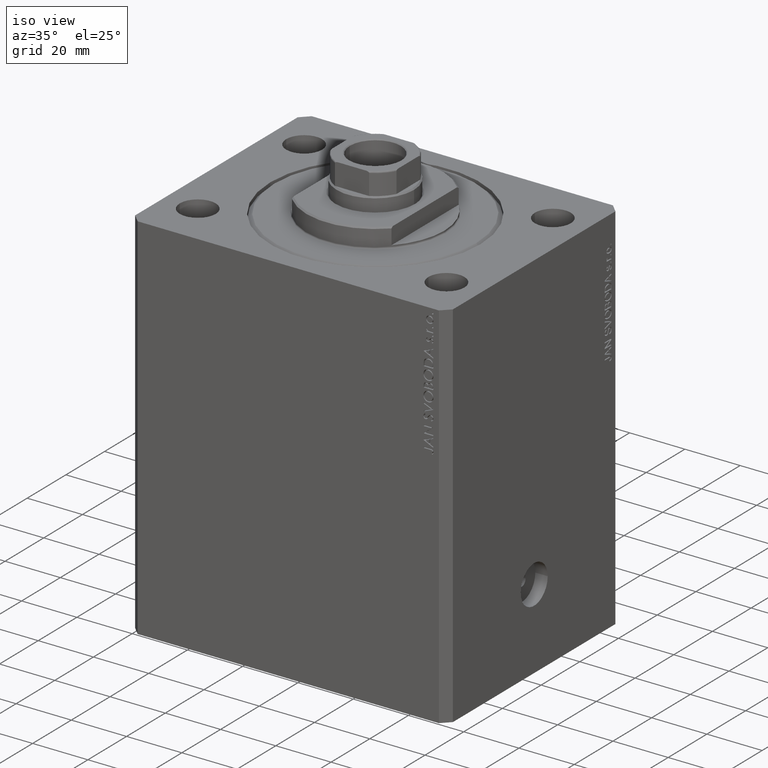
[diagram: clean part render]
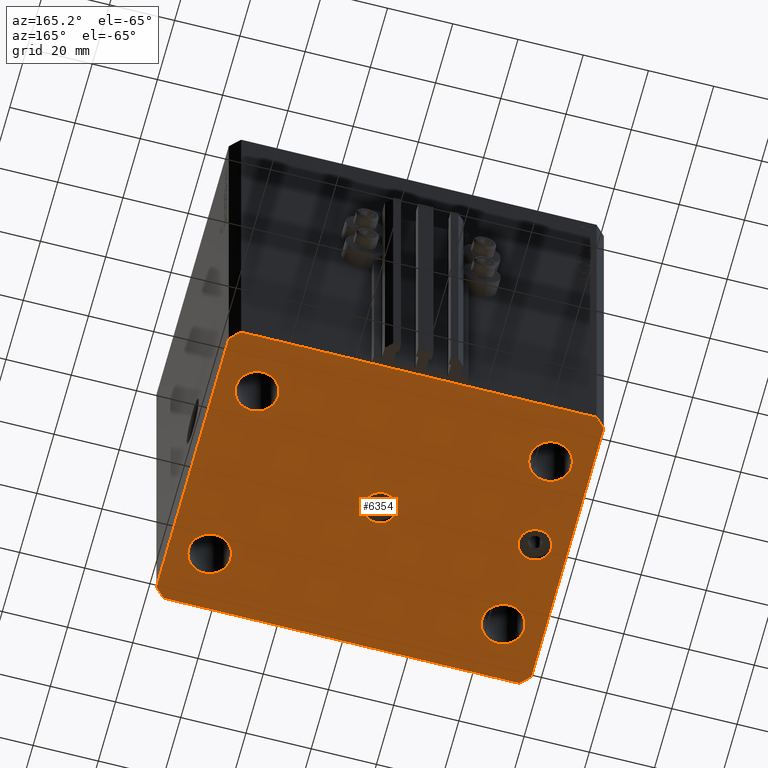
[diagram: tour spotlight — one face highlighted and labeled with its STEP entity id]
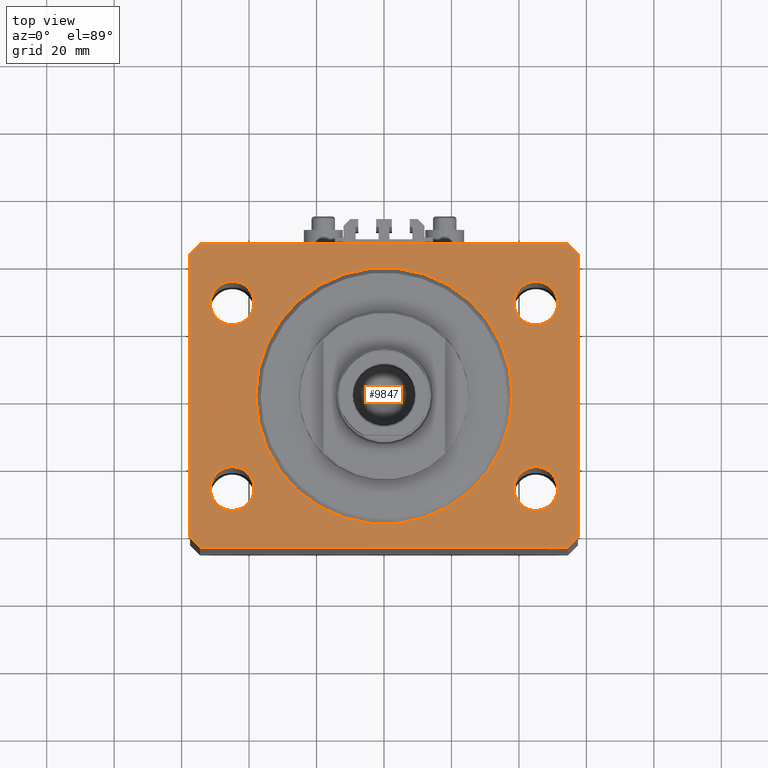
[diagram: tour spotlight — one face highlighted and labeled with its STEP entity id]
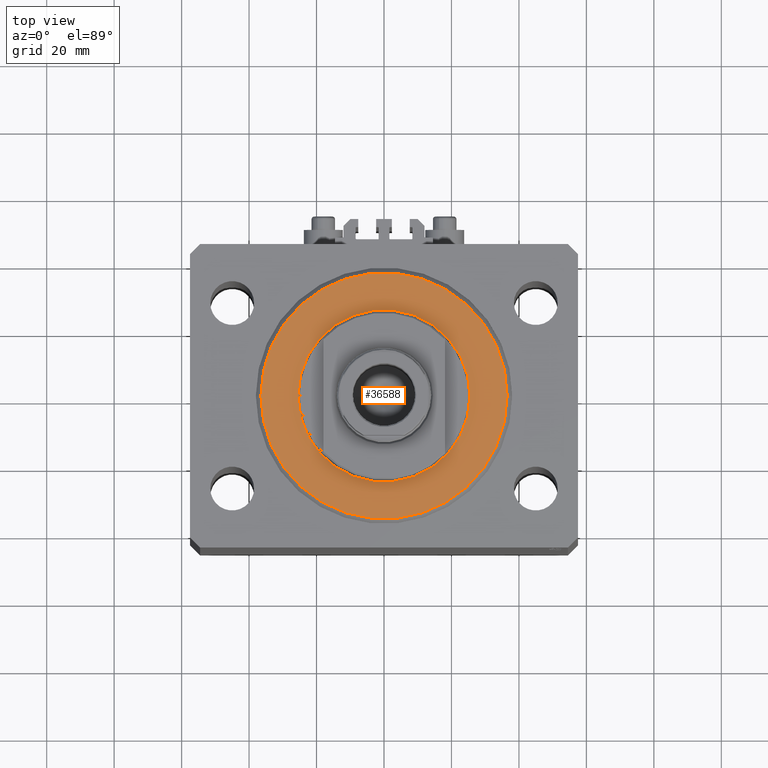
[diagram: tour spotlight — one face highlighted and labeled with its STEP entity id]
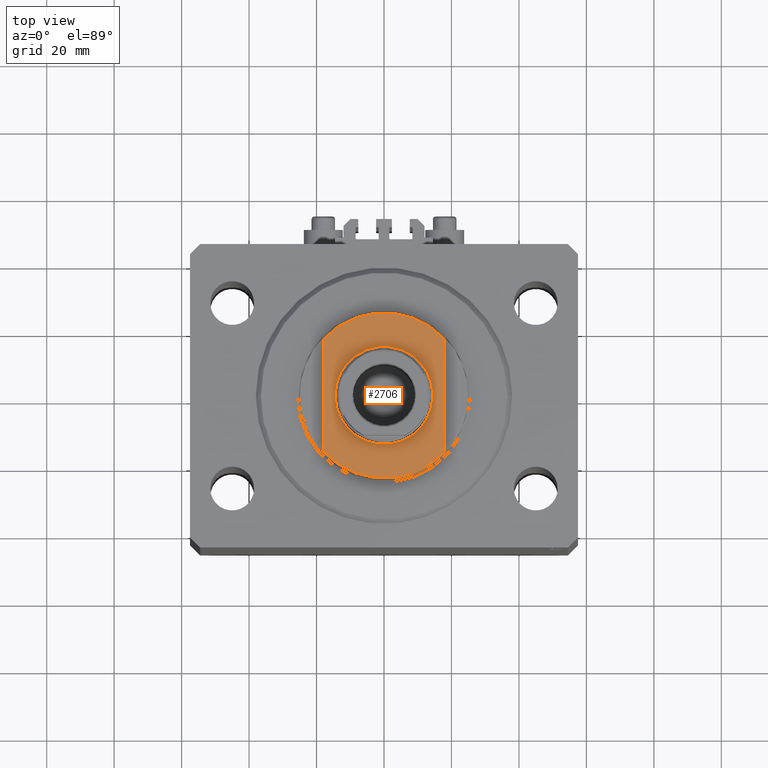
[diagram: tour spotlight — one face highlighted and labeled with its STEP entity id]
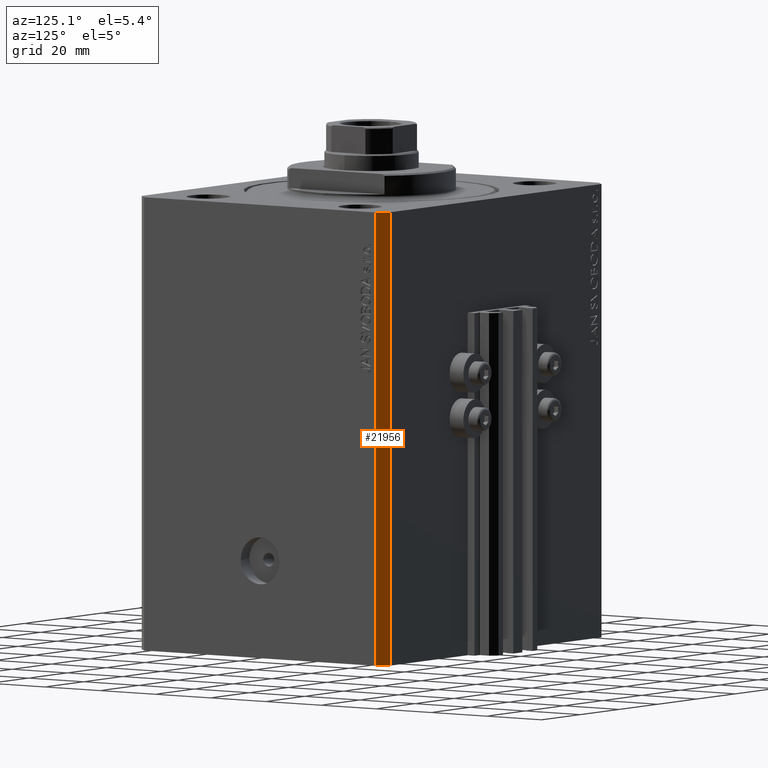
[diagram: tour spotlight — one face highlighted and labeled with its STEP entity id]
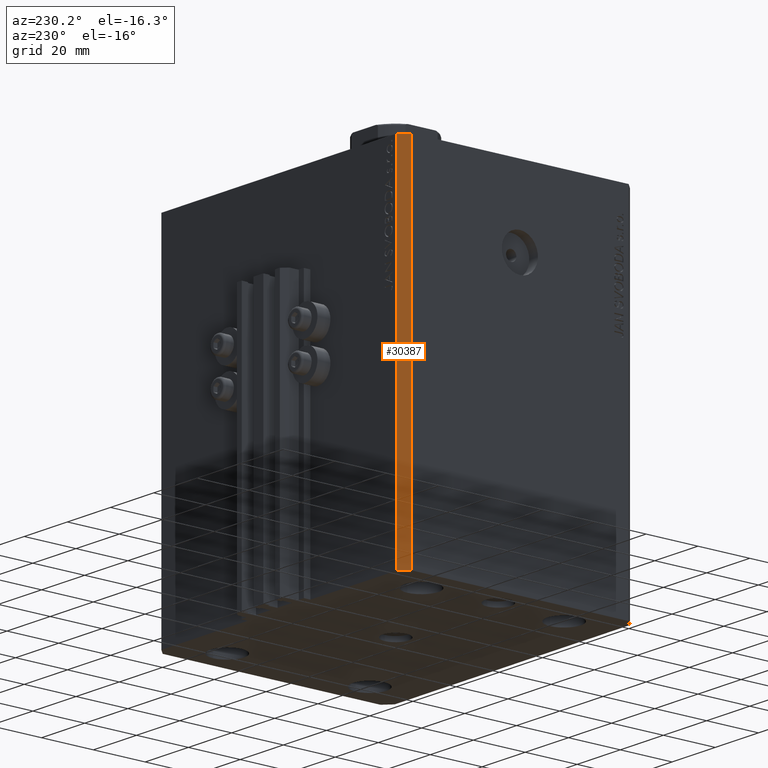
[diagram: tour spotlight — one face highlighted and labeled with its STEP entity id]
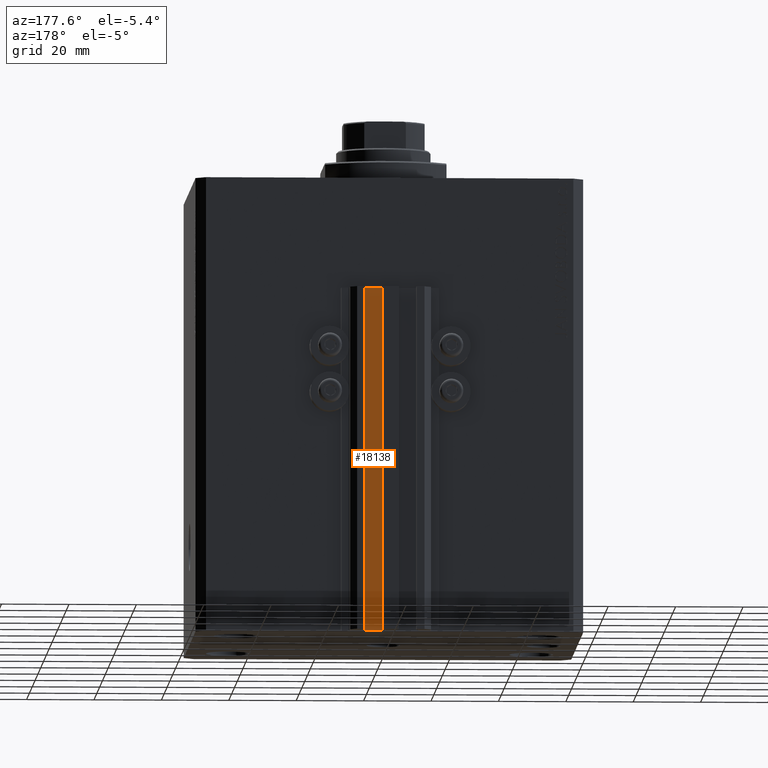
[diagram: tour spotlight — one face highlighted and labeled with its STEP entity id]
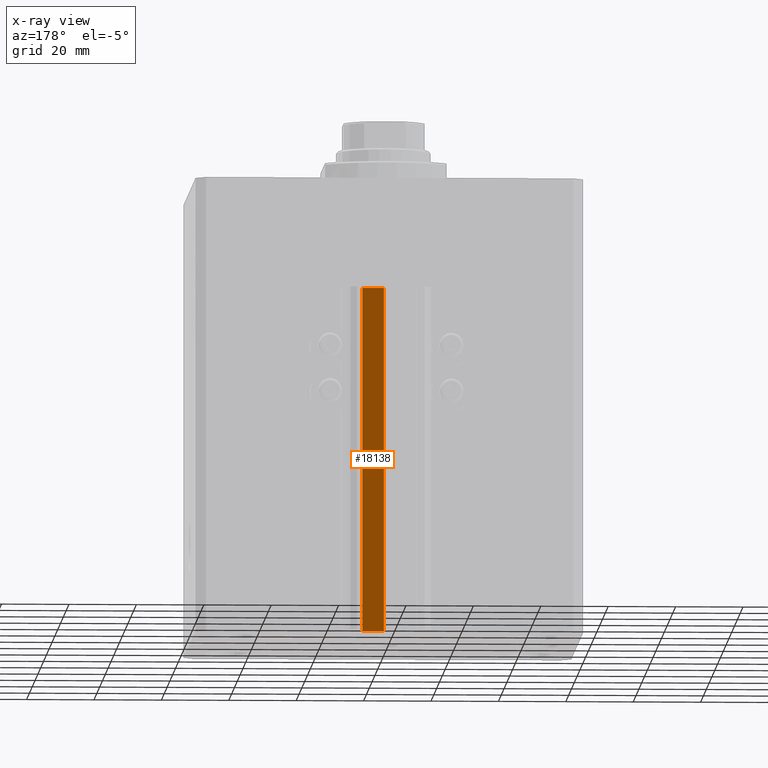
[diagram: x-ray of the same camera — body ghosted, this tour face saturated]
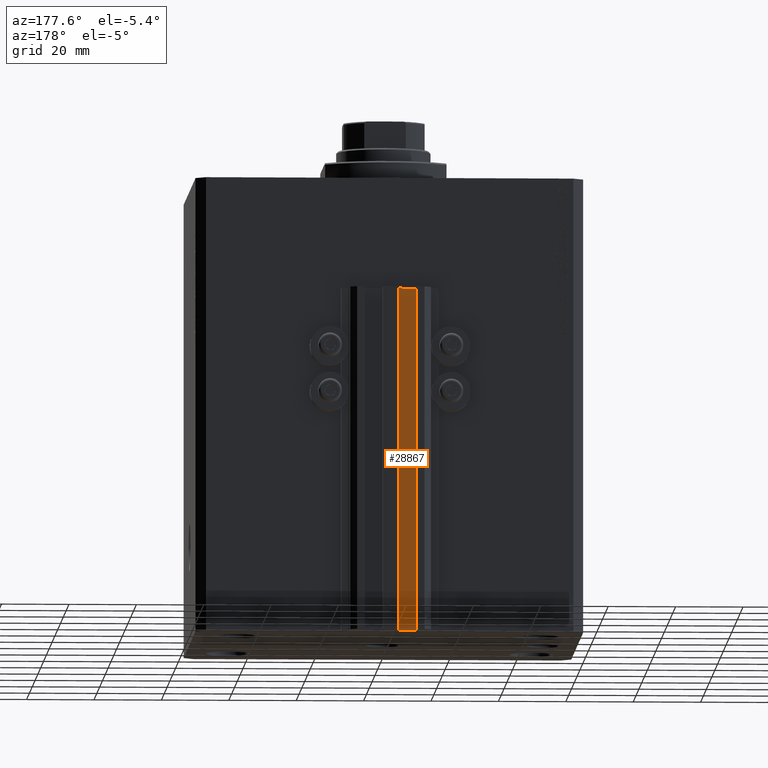
[diagram: tour spotlight — one face highlighted and labeled with its STEP entity id]
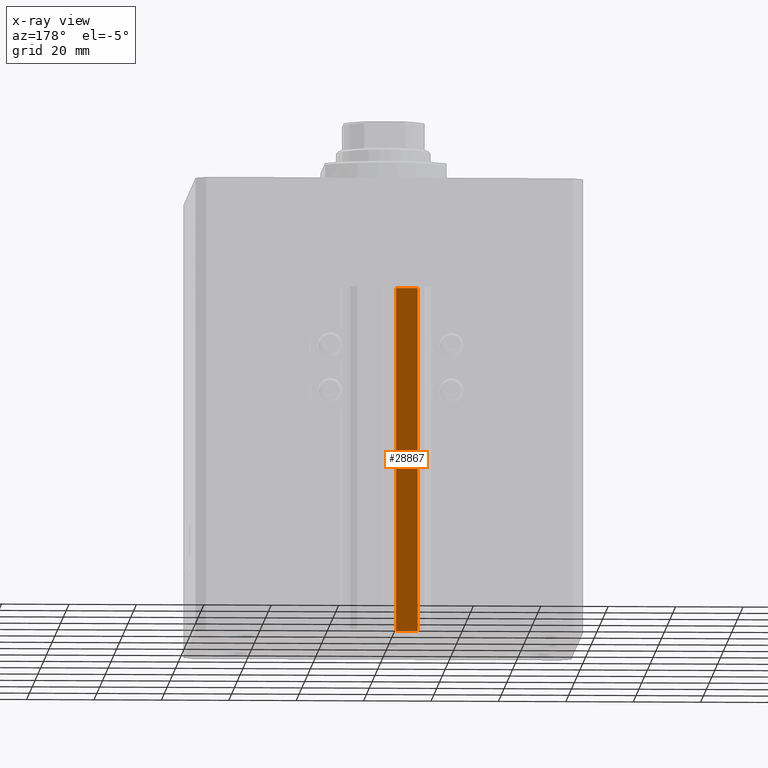
[diagram: x-ray of the same camera — body ghosted, this tour face saturated]
A machine part: a face-by-face anatomy tour. The part has 1038 B-rep faces; the first image is the clean iso view, then the 8 largest visible faces are spotlighted one at a time (largest first), each with its STEP entity span.

Face 1 — auxiliary view, entity #6354. In plain terms, the highlighted planar face has unit normal (0, 0, 1).
Definition (entity closure, byte-faithful):
#75 = CARTESIAN_POINT ( 'NONE',  ( 45.00000000000000000, 27.49999999999999289, -135.0000000000000000 ) ) ;
#225 = DIRECTION ( 'NONE',  ( 1.000000000000000000, 0.000000000000000000, 0.000000000000000000 ) ) ;
#308 = CIRCLE ( 'NONE', #43871, 5.000000000000000000 ) ;
#314 = CARTESIAN_POINT ( 'NONE',  ( 54.50000000000000711, -44.99999999999998579, -135.0000000000000000 ) ) ;
#408 = CARTESIAN_POINT ( 'NONE',  ( -44.99999999999998579, -27.50000000000000355, -135.0000000000000000 ) ) ;
#578 = EDGE_LOOP ( 'NONE', ( #1347, #4498 ) ) ;
#1347 = ORIENTED_EDGE ( 'NONE', *, *, #9539, .F. ) ;
#1409 = EDGE_CURVE ( 'NONE', #12749, #21892, #29365, .T. ) ;
#1579 = DIRECTION ( 'NONE',  ( -0.7071067811865369146, 0.7071067811865581199, 0.000000000000000000 ) ) ;
#1838 = CIRCLE ( 'NONE', #24786, 4.999999999999997335 ) ;
#2052 = FACE_BOUND ( 'NONE', #18580, .T. ) ;
#2468 = CIRCLE ( 'NONE', #41465, 6.499999999999999112 ) ;
#3034 = DIRECTION ( 'NONE',  ( 6.443258625056715108E-15, 1.000000000000000000, 0.000000000000000000 ) ) ;
#3431 = DIRECTION ( 'NONE',  ( 0.7071067811865483499, 0.7071067811865466846, 0.000000000000000000 ) ) ;
#3629 = EDGE_CURVE ( 'NONE', #33131, #8147, #47109, .T. ) ;
#3772 = DIRECTION ( 'NONE',  ( -2.478176394252581141E-16, -1.000000000000000000, 0.000000000000000000 ) ) ;
#3837 = DIRECTION ( 'NONE',  ( -1.000000000000000000, 0.000000000000000000, 0.000000000000000000 ) ) ;
#3884 = DIRECTION ( 'NONE',  ( -0.000000000000000000, -0.000000000000000000, -1.000000000000000000 ) ) ;
#4375 = DIRECTION ( 'NONE',  ( 1.000000000000000000, 0.000000000000000000, 0.000000000000000000 ) ) ;
#4498 = ORIENTED_EDGE ( 'NONE', *, *, #13538, .F. ) ;
#4531 = VECTOR ( 'NONE', #3034, 1000.000000000000000 ) ;
#4715 = AXIS2_PLACEMENT_3D ( 'NONE', #22054, #36633, #3837 ) ;
#5210 = ORIENTED_EDGE ( 'NONE', *, *, #19388, .F. ) ;
#5616 = DIRECTION ( 'NONE',  ( -1.000000000000000000, -2.546383084002638829E-16, 0.000000000000000000 ) ) ;
#6260 = VECTOR ( 'NONE', #37482, 1000.000000000000114 ) ;
#6354 = ADVANCED_FACE ( 'NONE', ( #12372, #2052, #9504, #23387, #41799, #45615, #12140 ), #27415, .F. ) ;
#6941 = EDGE_CURVE ( 'NONE', #42255, #17235, #20028, .T. ) ;
#6984 = VERTEX_POINT ( 'NONE', #8441 ) ;
#7041 = EDGE_CURVE ( 'NONE', #6984, #13813, #13122, .T. ) ;
#7129 = AXIS2_PLACEMENT_3D ( 'NONE', #33572, #7507, #4375 ) ;
#7359 = CARTESIAN_POINT ( 'NONE',  ( 57.50000000000000711, -41.99999999999998579, -135.0000000000000000 ) ) ;
#7507 = DIRECTION ( 'NONE',  ( -0.000000000000000000, -0.000000000000000000, -1.000000000000000000 ) ) ;
#7974 = EDGE_CURVE ( 'NONE', #38996, #23351, #35313, .T. ) ;
#7979 = DIRECTION ( 'NONE',  ( 1.000000000000000000, 0.000000000000000000, 0.000000000000000000 ) ) ;
#8078 = EDGE_LOOP ( 'NONE', ( #36218, #31328 ) ) ;
#8147 = VERTEX_POINT ( 'NONE', #24177 ) ;
#8285 = VERTEX_POINT ( 'NONE', #18867 ) ;
#8364 = DIRECTION ( 'NONE',  ( 0.000000000000000000, 0.000000000000000000, -1.000000000000000000 ) ) ;
#8441 = CARTESIAN_POINT ( 'NONE',  ( -38.50000000000000000, 27.49999999999999645, -135.0000000000000000 ) ) ;
#8663 = ORIENTED_EDGE ( 'NONE', *, *, #27718, .F. ) ;
#8795 = DIRECTION ( 'NONE',  ( 1.000000000000000000, 0.000000000000000000, 0.000000000000000000 ) ) ;
#9033 = DIRECTION ( 'NONE',  ( 1.000000000000000000, 0.000000000000000000, -0.000000000000000000 ) ) ;
#9504 = FACE_BOUND ( 'NONE', #578, .T. ) ;
#9539 = EDGE_CURVE ( 'NONE', #28837, #10145, #22284, .T. ) ;
#10099 = DIRECTION ( 'NONE',  ( 1.000000000000000000, 0.000000000000000000, 0.000000000000000000 ) ) ;
#10145 = VERTEX_POINT ( 'NONE', #15084 ) ;
#10168 = LINE ( 'NONE', #16871, #11570 ) ;
#10391 = ORIENTED_EDGE ( 'NONE', *, *, #38810, .F. ) ;
#10476 = EDGE_CURVE ( 'NONE', #8147, #36694, #44654, .T. ) ;
#11570 = VECTOR ( 'NONE', #5616, 1000.000000000000000 ) ;
#11888 = CARTESIAN_POINT ( 'NONE',  ( -57.50000000000000711, -42.00000000000000711, -135.0000000000000000 ) ) ;
#12140 = FACE_OUTER_BOUND ( 'NONE', #17545, .T. ) ;
#12372 = FACE_BOUND ( 'NONE', #39048, .T. ) ;
#12749 = VERTEX_POINT ( 'NONE', #18169 ) ;
#12814 = DIRECTION ( 'NONE',  ( 1.000000000000000000, 1.273191542001326317E-16, 0.000000000000000000 ) ) ;
#13122 = CIRCLE ( 'NONE', #18505, 6.499999999999999112 ) ;
#13444 = DIRECTION ( 'NONE',  ( -0.000000000000000000, -0.000000000000000000, -1.000000000000000000 ) ) ;
#13538 = EDGE_CURVE ( 'NONE', #10145, #28837, #2468, .T. ) ;
#13813 = VERTEX_POINT ( 'NONE', #15010 ) ;
#14016 = ORIENTED_EDGE ( 'NONE', *, *, #31334, .F. ) ;
#14102 = CARTESIAN_POINT ( 'NONE',  ( -57.49999999999998579, 42.00000000000000711, -135.0000000000000000 ) ) ;
#14368 = CARTESIAN_POINT ( 'NONE',  ( 44.99999999999998579, -27.50000000000000355, -135.0000000000000000 ) ) ;
#14549 = CARTESIAN_POINT ( 'NONE',  ( 38.50000000000000000, 27.49999999999999289, -135.0000000000000000 ) ) ;
#14708 = DIRECTION ( 'NONE',  ( -0.000000000000000000, -0.000000000000000000, -1.000000000000000000 ) ) ;
#14815 = DIRECTION ( 'NONE',  ( 1.000000000000000000, 0.000000000000000000, 0.000000000000000000 ) ) ;
#15010 = CARTESIAN_POINT ( 'NONE',  ( -51.50000000000000000, 27.49999999999999645, -135.0000000000000000 ) ) ;
#15050 = DIRECTION ( 'NONE',  ( -0.000000000000000000, -0.000000000000000000, -1.000000000000000000 ) ) ;
#15084 = CARTESIAN_POINT ( 'NONE',  ( -51.49999999999998579, -27.50000000000000355, -135.0000000000000000 ) ) ;
#15731 = ORIENTED_EDGE ( 'NONE', *, *, #3629, .F. ) ;
#16214 = CARTESIAN_POINT ( 'NONE',  ( 57.50000000000055422, 41.99999999999997868, -135.0000000000000000 ) ) ;
#16871 = CARTESIAN_POINT ( 'NONE',  ( 54.50000000000059686, 45.00000000000002842, -135.0000000000000000 ) ) ;
#17235 = VERTEX_POINT ( 'NONE', #26773 ) ;
#17444 = LINE ( 'NONE', #39211, #42852 ) ;
#17545 = EDGE_LOOP ( 'NONE', ( #14016, #24027, #27355, #8663, #45759, #19194, #15731, #40995 ) ) ;
#18041 = CARTESIAN_POINT ( 'NONE',  ( 54.50000000000059686, 45.00000000000002842, -135.0000000000000000 ) ) ;
#18169 = CARTESIAN_POINT ( 'NONE',  ( 57.50000000000000711, -41.99999999999998579, -135.0000000000000000 ) ) ;
#18505 = AXIS2_PLACEMENT_3D ( 'NONE', #20862, #13444, #10099 ) ;
#18580 = EDGE_LOOP ( 'NONE', ( #46594, #44364 ) ) ;
#18787 = LINE ( 'NONE', #314, #22529 ) ;
#18867 = CARTESIAN_POINT ( 'NONE',  ( -52.50000000000000000, 0.000000000000000000, -135.0000000000000000 ) ) ;
#18900 = CARTESIAN_POINT ( 'NONE',  ( -44.99999999999998579, -27.50000000000000355, -135.0000000000000000 ) ) ;
#19194 = ORIENTED_EDGE ( 'NONE', *, *, #10476, .F. ) ;
#19269 = VECTOR ( 'NONE', #12814, 1000.000000000000000 ) ;
#19388 = EDGE_CURVE ( 'NONE', #35589, #43186, #38599, .T. ) ;
#19997 = AXIS2_PLACEMENT_3D ( 'NONE', #35075, #42022, #9033 ) ;
#20028 = CIRCLE ( 'NONE', #26865, 6.499999999999999112 ) ;
#20718 = AXIS2_PLACEMENT_3D ( 'NONE', #40396, #15050, #14815 ) ;
#20862 = CARTESIAN_POINT ( 'NONE',  ( -45.00000000000000000, 27.49999999999999645, -135.0000000000000000 ) ) ;
#21117 = CARTESIAN_POINT ( 'NONE',  ( -54.49999999999999289, 45.00000000000000000, -135.0000000000000000 ) ) ;
#21516 = DIRECTION ( 'NONE',  ( -0.000000000000000000, -0.000000000000000000, -1.000000000000000000 ) ) ;
#21596 = CARTESIAN_POINT ( 'NONE',  ( -42.50000000000000000, 6.123233995736762338E-16, -135.0000000000000000 ) ) ;
#21892 = VERTEX_POINT ( 'NONE', #41104 ) ;
#22054 = CARTESIAN_POINT ( 'NONE',  ( -47.50000000000000000, 0.000000000000000000, -135.0000000000000000 ) ) ;
#22284 = CIRCLE ( 'NONE', #33705, 6.499999999999999112 ) ;
#22301 = CARTESIAN_POINT ( 'NONE',  ( 38.49999999999998579, -27.50000000000000355, -135.0000000000000000 ) ) ;
#22446 = DIRECTION ( 'NONE',  ( -0.000000000000000000, -0.000000000000000000, -1.000000000000000000 ) ) ;
#22529 = VECTOR ( 'NONE', #3431, 1000.000000000000000 ) ;
#22591 = AXIS2_PLACEMENT_3D ( 'NONE', #14368, #39959, #225 ) ;
#22698 = LINE ( 'NONE', #16214, #40291 ) ;
#23351 = VERTEX_POINT ( 'NONE', #26699 ) ;
#23387 = FACE_BOUND ( 'NONE', #24267, .T. ) ;
#23588 = CARTESIAN_POINT ( 'NONE',  ( 54.50000000000000711, -44.99999999999998579, -135.0000000000000000 ) ) ;
#23999 = EDGE_LOOP ( 'NONE', ( #42217, #5210 ) ) ;
#24003 = DIRECTION ( 'NONE',  ( 0.000000000000000000, 0.000000000000000000, -1.000000000000000000 ) ) ;
#24027 = ORIENTED_EDGE ( 'NONE', *, *, #25521, .F. ) ;
#24140 = DIRECTION ( 'NONE',  ( -0.7071067811865483499, -0.7071067811865466846, 0.000000000000000000 ) ) ;
#24177 = CARTESIAN_POINT ( 'NONE',  ( -57.50000000000000711, -42.00000000000000711, -135.0000000000000000 ) ) ;
#24227 = EDGE_CURVE ( 'NONE', #17235, #42255, #43212, .T. ) ;
#24267 = EDGE_LOOP ( 'NONE', ( #40946, #30355 ) ) ;
#24612 = CARTESIAN_POINT ( 'NONE',  ( 51.50000000000000000, 27.49999999999999289, -135.0000000000000000 ) ) ;
#24786 = AXIS2_PLACEMENT_3D ( 'NONE', #35256, #28553, #43615 ) ;
#25521 = EDGE_CURVE ( 'NONE', #21892, #36167, #22698, .T. ) ;
#26699 = CARTESIAN_POINT ( 'NONE',  ( 5.000000000000000000, 6.123233995736765296E-16, -135.0000000000000000 ) ) ;
#26773 = CARTESIAN_POINT ( 'NONE',  ( 51.49999999999998579, -27.50000000000000355, -135.0000000000000000 ) ) ;
#26865 = AXIS2_PLACEMENT_3D ( 'NONE', #40753, #3884, #7979 ) ;
#27139 = VERTEX_POINT ( 'NONE', #21117 ) ;
#27355 = ORIENTED_EDGE ( 'NONE', *, *, #1409, .F. ) ;
#27415 = PLANE ( 'NONE',  #19997 ) ;
#27718 = EDGE_CURVE ( 'NONE', #37144, #12749, #18787, .T. ) ;
#28286 = DIRECTION ( 'NONE',  ( -1.000000000000000000, 0.000000000000000000, 0.000000000000000000 ) ) ;
#28553 = DIRECTION ( 'NONE',  ( 0.000000000000000000, 0.000000000000000000, -1.000000000000000000 ) ) ;
#28837 = VERTEX_POINT ( 'NONE', #33263 ) ;
#29365 = LINE ( 'NONE', #7359, #4531 ) ;
#29890 = EDGE_CURVE ( 'NONE', #27139, #33131, #17444, .T. ) ;
#29962 = EDGE_CURVE ( 'NONE', #13813, #6984, #45125, .T. ) ;
#30355 = ORIENTED_EDGE ( 'NONE', *, *, #6941, .F. ) ;
#30711 = CIRCLE ( 'NONE', #4715, 4.999999999999997335 ) ;
#30985 = LINE ( 'NONE', #45578, #19269 ) ;
#31328 = ORIENTED_EDGE ( 'NONE', *, *, #29962, .F. ) ;
#31334 = EDGE_CURVE ( 'NONE', #36167, #27139, #10168, .T. ) ;
#31648 = CARTESIAN_POINT ( 'NONE',  ( 0.000000000000000000, 0.000000000000000000, -135.0000000000000000 ) ) ;
#32146 = VECTOR ( 'NONE', #3772, 1000.000000000000000 ) ;
#32262 = EDGE_CURVE ( 'NONE', #36694, #37144, #30985, .T. ) ;
#32752 = DIRECTION ( 'NONE',  ( 1.000000000000000000, 0.000000000000000000, 0.000000000000000000 ) ) ;
#32858 = EDGE_CURVE ( 'NONE', #37435, #8285, #30711, .T. ) ;
#33131 = VERTEX_POINT ( 'NONE', #40647 ) ;
#33263 = CARTESIAN_POINT ( 'NONE',  ( -38.49999999999998579, -27.50000000000000355, -135.0000000000000000 ) ) ;
#33361 = DIRECTION ( 'NONE',  ( 1.000000000000000000, 0.000000000000000000, 0.000000000000000000 ) ) ;
#33572 = CARTESIAN_POINT ( 'NONE',  ( 45.00000000000000000, 27.49999999999999289, -135.0000000000000000 ) ) ;
#33705 = AXIS2_PLACEMENT_3D ( 'NONE', #408, #22446, #8795 ) ;
#34079 = CARTESIAN_POINT ( 'NONE',  ( -5.000000000000000000, 0.000000000000000000, -135.0000000000000000 ) ) ;
#34185 = CARTESIAN_POINT ( 'NONE',  ( 0.000000000000000000, 0.000000000000000000, -135.0000000000000000 ) ) ;
#34414 = DIRECTION ( 'NONE',  ( -1.000000000000000000, 0.000000000000000000, 0.000000000000000000 ) ) ;
#35075 = CARTESIAN_POINT ( 'NONE',  ( 0.000000000000000000, 0.000000000000000000, -135.0000000000000000 ) ) ;
#35256 = CARTESIAN_POINT ( 'NONE',  ( -47.50000000000000000, 0.000000000000000000, -135.0000000000000000 ) ) ;
#35313 = CIRCLE ( 'NONE', #36868, 5.000000000000000000 ) ;
#35589 = VERTEX_POINT ( 'NONE', #14549 ) ;
#36167 = VERTEX_POINT ( 'NONE', #18041 ) ;
#36218 = ORIENTED_EDGE ( 'NONE', *, *, #7041, .F. ) ;
#36633 = DIRECTION ( 'NONE',  ( 0.000000000000000000, 0.000000000000000000, -1.000000000000000000 ) ) ;
#36694 = VERTEX_POINT ( 'NONE', #47275 ) ;
#36868 = AXIS2_PLACEMENT_3D ( 'NONE', #31648, #24003, #28286 ) ;
#37144 = VERTEX_POINT ( 'NONE', #23588 ) ;
#37435 = VERTEX_POINT ( 'NONE', #21596 ) ;
#37482 = DIRECTION ( 'NONE',  ( 0.7071067811865491270, -0.7071067811865459074, 0.000000000000000000 ) ) ;
#38385 = ORIENTED_EDGE ( 'NONE', *, *, #7974, .F. ) ;
#38599 = CIRCLE ( 'NONE', #47002, 6.499999999999999112 ) ;
#38810 = EDGE_CURVE ( 'NONE', #23351, #38996, #308, .T. ) ;
#38996 = VERTEX_POINT ( 'NONE', #34079 ) ;
#39048 = EDGE_LOOP ( 'NONE', ( #38385, #10391 ) ) ;
#39211 = CARTESIAN_POINT ( 'NONE',  ( -54.49999999999999289, 45.00000000000000000, -135.0000000000000000 ) ) ;
#39959 = DIRECTION ( 'NONE',  ( -0.000000000000000000, -0.000000000000000000, -1.000000000000000000 ) ) ;
#40161 = EDGE_CURVE ( 'NONE', #43186, #35589, #42262, .T. ) ;
#40291 = VECTOR ( 'NONE', #1579, 1000.000000000000000 ) ;
#40396 = CARTESIAN_POINT ( 'NONE',  ( -45.00000000000000000, 27.49999999999999645, -135.0000000000000000 ) ) ;
#40647 = CARTESIAN_POINT ( 'NONE',  ( -57.49999999999998579, 42.00000000000000711, -135.0000000000000000 ) ) ;
#40753 = CARTESIAN_POINT ( 'NONE',  ( 44.99999999999998579, -27.50000000000000355, -135.0000000000000000 ) ) ;
#40946 = ORIENTED_EDGE ( 'NONE', *, *, #24227, .F. ) ;
#40995 = ORIENTED_EDGE ( 'NONE', *, *, #29890, .F. ) ;
#41104 = CARTESIAN_POINT ( 'NONE',  ( 57.50000000000055422, 41.99999999999997868, -135.0000000000000000 ) ) ;
#41465 = AXIS2_PLACEMENT_3D ( 'NONE', #18900, #21516, #32752 ) ;
#41799 = FACE_BOUND ( 'NONE', #23999, .T. ) ;
#42022 = DIRECTION ( 'NONE',  ( 0.000000000000000000, 0.000000000000000000, 1.000000000000000000 ) ) ;
#42217 = ORIENTED_EDGE ( 'NONE', *, *, #40161, .F. ) ;
#42255 = VERTEX_POINT ( 'NONE', #22301 ) ;
#42262 = CIRCLE ( 'NONE', #7129, 6.499999999999999112 ) ;
#42852 = VECTOR ( 'NONE', #24140, 1000.000000000000000 ) ;
#43186 = VERTEX_POINT ( 'NONE', #24612 ) ;
#43212 = CIRCLE ( 'NONE', #22591, 6.499999999999999112 ) ;
#43499 = EDGE_CURVE ( 'NONE', #8285, #37435, #1838, .T. ) ;
#43615 = DIRECTION ( 'NONE',  ( -1.000000000000000000, 0.000000000000000000, 0.000000000000000000 ) ) ;
#43871 = AXIS2_PLACEMENT_3D ( 'NONE', #34185, #8364, #34414 ) ;
#44364 = ORIENTED_EDGE ( 'NONE', *, *, #32858, .F. ) ;
#44654 = LINE ( 'NONE', #11888, #6260 ) ;
#45125 = CIRCLE ( 'NONE', #20718, 6.499999999999999112 ) ;
#45578 = CARTESIAN_POINT ( 'NONE',  ( -54.50000000000000711, -45.00000000000000000, -135.0000000000000000 ) ) ;
#45615 = FACE_BOUND ( 'NONE', #8078, .T. ) ;
#45759 = ORIENTED_EDGE ( 'NONE', *, *, #32262, .F. ) ;
#46594 = ORIENTED_EDGE ( 'NONE', *, *, #43499, .F. ) ;
#47002 = AXIS2_PLACEMENT_3D ( 'NONE', #75, #14708, #33361 ) ;
#47109 = LINE ( 'NONE', #14102, #32146 ) ;
#47275 = CARTESIAN_POINT ( 'NONE',  ( -54.50000000000000711, -45.00000000000000000, -135.0000000000000000 ) ) ;

Face 2 — top view, entity #9847. In plain terms, the highlighted planar face has unit normal (0, 0, 1).
Definition (entity closure, byte-faithful):
#26 = ORIENTED_EDGE ( 'NONE', *, *, #26255, .T. ) ;
#219 = VECTOR ( 'NONE', #2076, 1000.000000000000000 ) ;
#1051 = CIRCLE ( 'NONE', #46906, 6.499999999999999112 ) ;
#1294 = VERTEX_POINT ( 'NONE', #11976 ) ;
#1368 = VERTEX_POINT ( 'NONE', #36778 ) ;
#1372 = DIRECTION ( 'NONE',  ( -2.478176394252581141E-16, -1.000000000000000000, 0.000000000000000000 ) ) ;
#1629 = AXIS2_PLACEMENT_3D ( 'NONE', #3190, #35519, #47232 ) ;
#1658 = EDGE_CURVE ( 'NONE', #32059, #31007, #44298, .T. ) ;
#1928 = DIRECTION ( 'NONE',  ( 0.000000000000000000, 0.000000000000000000, 1.000000000000000000 ) ) ;
#2076 = DIRECTION ( 'NONE',  ( -0.7071067811865483499, -0.7071067811865466846, 0.000000000000000000 ) ) ;
#2117 = CARTESIAN_POINT ( 'NONE',  ( 38.49999999999998579, -27.50000000000000355, 0.000000000000000000 ) ) ;
#2831 = DIRECTION ( 'NONE',  ( 0.7071067811865483499, 0.7071067811865466846, 0.000000000000000000 ) ) ;
#3190 = CARTESIAN_POINT ( 'NONE',  ( 44.99999999999998579, -27.50000000000000355, 0.000000000000000000 ) ) ;
#3337 = CARTESIAN_POINT ( 'NONE',  ( 51.49999999999998579, -27.50000000000000355, 0.000000000000000000 ) ) ;
#3777 = AXIS2_PLACEMENT_3D ( 'NONE', #41904, #1928, #16565 ) ;
#4244 = CIRCLE ( 'NONE', #30953, 38.00000000000000000 ) ;
#4392 = FACE_BOUND ( 'NONE', #31201, .T. ) ;
#4866 = CARTESIAN_POINT ( 'NONE',  ( 57.50000000000055422, 41.99999999999997868, 0.000000000000000000 ) ) ;
#5128 = CARTESIAN_POINT ( 'NONE',  ( -54.49999999999999289, 45.00000000000000000, 0.000000000000000000 ) ) ;
#5192 = CARTESIAN_POINT ( 'NONE',  ( -54.50000000000000711, -45.00000000000000000, 0.000000000000000000 ) ) ;
#5896 = DIRECTION ( 'NONE',  ( 0.000000000000000000, 0.000000000000000000, 1.000000000000000000 ) ) ;
#6079 = ORIENTED_EDGE ( 'NONE', *, *, #7692, .F. ) ;
#6181 = CIRCLE ( 'NONE', #12299, 6.499999999999999112 ) ;
#6203 = CARTESIAN_POINT ( 'NONE',  ( 54.50000000000059686, 45.00000000000002842, 0.000000000000000000 ) ) ;
#6287 = LINE ( 'NONE', #42887, #6502 ) ;
#6502 = VECTOR ( 'NONE', #47186, 1000.000000000000000 ) ;
#6955 = VECTOR ( 'NONE', #32214, 1000.000000000000000 ) ;
#7295 = CARTESIAN_POINT ( 'NONE',  ( 0.000000000000000000, 0.000000000000000000, 0.000000000000000000 ) ) ;
#7488 = DIRECTION ( 'NONE',  ( 0.000000000000000000, 0.000000000000000000, 1.000000000000000000 ) ) ;
#7529 = DIRECTION ( 'NONE',  ( 1.000000000000000000, 0.000000000000000000, 0.000000000000000000 ) ) ;
#7692 = EDGE_CURVE ( 'NONE', #27053, #30519, #42874, .T. ) ;
#7927 = ORIENTED_EDGE ( 'NONE', *, *, #12663, .T. ) ;
#8006 = CARTESIAN_POINT ( 'NONE',  ( 0.000000000000000000, 0.000000000000000000, 0.000000000000000000 ) ) ;
#8791 = CARTESIAN_POINT ( 'NONE',  ( -38.50000000000000000, 27.49999999999999645, 0.000000000000000000 ) ) ;
#8841 = VECTOR ( 'NONE', #13590, 1000.000000000000000 ) ;
#8900 = EDGE_CURVE ( 'NONE', #1294, #13776, #6181, .T. ) ;
#9074 = VERTEX_POINT ( 'NONE', #28234 ) ;
#9174 = VERTEX_POINT ( 'NONE', #3337 ) ;
#9800 = LINE ( 'NONE', #16978, #15100 ) ;
#9847 = ADVANCED_FACE ( 'NONE', ( #4392, #41656, #14471, #44129, #18551, #36711 ), #47246, .T. ) ;
#10041 = DIRECTION ( 'NONE',  ( -1.000000000000000000, -2.546383084002638829E-16, 0.000000000000000000 ) ) ;
#11535 = EDGE_LOOP ( 'NONE', ( #28288, #20171 ) ) ;
#11945 = CARTESIAN_POINT ( 'NONE',  ( -57.49999999999998579, 42.00000000000000711, 0.000000000000000000 ) ) ;
#11976 = CARTESIAN_POINT ( 'NONE',  ( 38.50000000000000000, 27.49999999999999289, 0.000000000000000000 ) ) ;
#12299 = AXIS2_PLACEMENT_3D ( 'NONE', #12732, #30896, #27297 ) ;
#12319 = DIRECTION ( 'NONE',  ( 1.000000000000000000, 0.000000000000000000, 0.000000000000000000 ) ) ;
#12663 = EDGE_CURVE ( 'NONE', #1368, #16782, #34912, .T. ) ;
#12732 = CARTESIAN_POINT ( 'NONE',  ( 45.00000000000000000, 27.49999999999999289, 0.000000000000000000 ) ) ;
#12908 = DIRECTION ( 'NONE',  ( 0.000000000000000000, 0.000000000000000000, 1.000000000000000000 ) ) ;
#13068 = EDGE_LOOP ( 'NONE', ( #46549, #33500 ) ) ;
#13469 = ORIENTED_EDGE ( 'NONE', *, *, #46475, .F. ) ;
#13590 = DIRECTION ( 'NONE',  ( 6.443258625056715108E-15, 1.000000000000000000, 0.000000000000000000 ) ) ;
#13776 = VERTEX_POINT ( 'NONE', #23863 ) ;
#14005 = CARTESIAN_POINT ( 'NONE',  ( 0.000000000000000000, 0.000000000000000000, 0.000000000000000000 ) ) ;
#14471 = FACE_BOUND ( 'NONE', #13068, .T. ) ;
#14507 = EDGE_CURVE ( 'NONE', #16782, #39447, #20292, .T. ) ;
#14787 = DIRECTION ( 'NONE',  ( 0.000000000000000000, 0.000000000000000000, 1.000000000000000000 ) ) ;
#14907 = ORIENTED_EDGE ( 'NONE', *, *, #1658, .F. ) ;
#15100 = VECTOR ( 'NONE', #2831, 1000.000000000000000 ) ;
#15883 = CIRCLE ( 'NONE', #28083, 6.499999999999999112 ) ;
#16565 = DIRECTION ( 'NONE',  ( 1.000000000000000000, 0.000000000000000000, 0.000000000000000000 ) ) ;
#16782 = VERTEX_POINT ( 'NONE', #5128 ) ;
#16978 = CARTESIAN_POINT ( 'NONE',  ( 54.50000000000000711, -44.99999999999998579, 0.000000000000000000 ) ) ;
#17373 = EDGE_CURVE ( 'NONE', #38656, #24319, #42309, .T. ) ;
#18048 = CARTESIAN_POINT ( 'NONE',  ( 45.00000000000000000, 27.49999999999999289, 0.000000000000000000 ) ) ;
#18551 = FACE_BOUND ( 'NONE', #36984, .T. ) ;
#18663 = CIRCLE ( 'NONE', #46114, 6.499999999999999112 ) ;
#18748 = VECTOR ( 'NONE', #1372, 1000.000000000000000 ) ;
#18922 = VERTEX_POINT ( 'NONE', #19184 ) ;
#19184 = CARTESIAN_POINT ( 'NONE',  ( -57.50000000000000711, -42.00000000000000711, 0.000000000000000000 ) ) ;
#19528 = EDGE_CURVE ( 'NONE', #46719, #1368, #6287, .T. ) ;
#19849 = ORIENTED_EDGE ( 'NONE', *, *, #31037, .T. ) ;
#19912 = EDGE_CURVE ( 'NONE', #39447, #18922, #41831, .T. ) ;
#20171 = ORIENTED_EDGE ( 'NONE', *, *, #8900, .F. ) ;
#20292 = LINE ( 'NONE', #34875, #219 ) ;
#20325 = DIRECTION ( 'NONE',  ( 1.000000000000000000, 0.000000000000000000, 0.000000000000000000 ) ) ;
#21011 = LINE ( 'NONE', #38938, #8841 ) ;
#21893 = DIRECTION ( 'NONE',  ( 1.000000000000000000, 0.000000000000000000, -0.000000000000000000 ) ) ;
#22282 = LINE ( 'NONE', #40938, #33253 ) ;
#22491 = AXIS2_PLACEMENT_3D ( 'NONE', #45672, #12908, #20325 ) ;
#23710 = ORIENTED_EDGE ( 'NONE', *, *, #46123, .T. ) ;
#23826 = ORIENTED_EDGE ( 'NONE', *, *, #19912, .T. ) ;
#23863 = CARTESIAN_POINT ( 'NONE',  ( 51.50000000000000000, 27.49999999999999289, 0.000000000000000000 ) ) ;
#23919 = CIRCLE ( 'NONE', #40740, 6.499999999999999112 ) ;
#24265 = CARTESIAN_POINT ( 'NONE',  ( -45.00000000000000000, 27.49999999999999645, 0.000000000000000000 ) ) ;
#24319 = VERTEX_POINT ( 'NONE', #8791 ) ;
#24404 = ORIENTED_EDGE ( 'NONE', *, *, #36858, .F. ) ;
#25075 = ORIENTED_EDGE ( 'NONE', *, *, #44374, .T. ) ;
#25148 = ORIENTED_EDGE ( 'NONE', *, *, #14507, .T. ) ;
#25396 = VECTOR ( 'NONE', #10041, 1000.000000000000000 ) ;
#25532 = CARTESIAN_POINT ( 'NONE',  ( 44.99999999999998579, -27.50000000000000355, 0.000000000000000000 ) ) ;
#25623 = EDGE_CURVE ( 'NONE', #13776, #1294, #15883, .T. ) ;
#26148 = VERTEX_POINT ( 'NONE', #2117 ) ;
#26255 = EDGE_CURVE ( 'NONE', #9074, #30294, #9800, .T. ) ;
#26556 = VERTEX_POINT ( 'NONE', #5192 ) ;
#27053 = VERTEX_POINT ( 'NONE', #31388 ) ;
#27297 = DIRECTION ( 'NONE',  ( 1.000000000000000000, 0.000000000000000000, 0.000000000000000000 ) ) ;
#27666 = CARTESIAN_POINT ( 'NONE',  ( -54.50000000000000711, -45.00000000000000000, 0.000000000000000000 ) ) ;
#28083 = AXIS2_PLACEMENT_3D ( 'NONE', #18048, #5896, #38913 ) ;
#28234 = CARTESIAN_POINT ( 'NONE',  ( 54.50000000000000711, -44.99999999999998579, 0.000000000000000000 ) ) ;
#28288 = ORIENTED_EDGE ( 'NONE', *, *, #25623, .F. ) ;
#28588 = DIRECTION ( 'NONE',  ( 1.000000000000000000, 0.000000000000000000, 0.000000000000000000 ) ) ;
#29366 = DIRECTION ( 'NONE',  ( 1.000000000000000000, 0.000000000000000000, 0.000000000000000000 ) ) ;
#30294 = VERTEX_POINT ( 'NONE', #30726 ) ;
#30519 = VERTEX_POINT ( 'NONE', #31440 ) ;
#30674 = ORIENTED_EDGE ( 'NONE', *, *, #17373, .F. ) ;
#30726 = CARTESIAN_POINT ( 'NONE',  ( 57.50000000000000711, -41.99999999999998579, 0.000000000000000000 ) ) ;
#30896 = DIRECTION ( 'NONE',  ( 0.000000000000000000, 0.000000000000000000, 1.000000000000000000 ) ) ;
#30953 = AXIS2_PLACEMENT_3D ( 'NONE', #7295, #40542, #7529 ) ;
#31007 = VERTEX_POINT ( 'NONE', #31976 ) ;
#31037 = EDGE_CURVE ( 'NONE', #26556, #9074, #35808, .T. ) ;
#31201 = EDGE_LOOP ( 'NONE', ( #13469, #6079 ) ) ;
#31388 = CARTESIAN_POINT ( 'NONE',  ( -38.00000000000000000, 4.653657836759941941E-15, 0.000000000000000000 ) ) ;
#31440 = CARTESIAN_POINT ( 'NONE',  ( 38.00000000000000000, 0.000000000000000000, 0.000000000000000000 ) ) ;
#31489 = AXIS2_PLACEMENT_3D ( 'NONE', #14005, #31708, #28588 ) ;
#31681 = DIRECTION ( 'NONE',  ( 0.000000000000000000, 0.000000000000000000, 1.000000000000000000 ) ) ;
#31708 = DIRECTION ( 'NONE',  ( 0.000000000000000000, 0.000000000000000000, 1.000000000000000000 ) ) ;
#31976 = CARTESIAN_POINT ( 'NONE',  ( -38.49999999999998579, -27.50000000000000355, 0.000000000000000000 ) ) ;
#31977 = CARTESIAN_POINT ( 'NONE',  ( -51.49999999999998579, -27.50000000000000355, 0.000000000000000000 ) ) ;
#32059 = VERTEX_POINT ( 'NONE', #31977 ) ;
#32214 = DIRECTION ( 'NONE',  ( 1.000000000000000000, 1.273191542001326317E-16, 0.000000000000000000 ) ) ;
#32450 = EDGE_CURVE ( 'NONE', #9174, #26148, #42928, .T. ) ;
#32549 = CARTESIAN_POINT ( 'NONE',  ( -51.50000000000000000, 27.49999999999999645, 0.000000000000000000 ) ) ;
#33046 = DIRECTION ( 'NONE',  ( 0.7071067811865491270, -0.7071067811865459074, 0.000000000000000000 ) ) ;
#33087 = DIRECTION ( 'NONE',  ( 1.000000000000000000, 0.000000000000000000, 0.000000000000000000 ) ) ;
#33253 = VECTOR ( 'NONE', #33046, 1000.000000000000114 ) ;
#33500 = ORIENTED_EDGE ( 'NONE', *, *, #37786, .F. ) ;
#33555 = CARTESIAN_POINT ( 'NONE',  ( -44.99999999999998579, -27.50000000000000355, 0.000000000000000000 ) ) ;
#34875 = CARTESIAN_POINT ( 'NONE',  ( -54.49999999999999289, 45.00000000000000000, 0.000000000000000000 ) ) ;
#34912 = LINE ( 'NONE', #6203, #25396 ) ;
#35519 = DIRECTION ( 'NONE',  ( 0.000000000000000000, 0.000000000000000000, 1.000000000000000000 ) ) ;
#35808 = LINE ( 'NONE', #27666, #6955 ) ;
#36188 = ORIENTED_EDGE ( 'NONE', *, *, #19528, .T. ) ;
#36711 = FACE_OUTER_BOUND ( 'NONE', #41974, .T. ) ;
#36778 = CARTESIAN_POINT ( 'NONE',  ( 54.50000000000059686, 45.00000000000002842, 0.000000000000000000 ) ) ;
#36858 = EDGE_CURVE ( 'NONE', #24319, #38656, #23919, .T. ) ;
#36984 = EDGE_LOOP ( 'NONE', ( #24404, #30674 ) ) ;
#37070 = EDGE_LOOP ( 'NONE', ( #43368, #14907 ) ) ;
#37786 = EDGE_CURVE ( 'NONE', #26148, #9174, #18663, .T. ) ;
#38656 = VERTEX_POINT ( 'NONE', #32549 ) ;
#38913 = DIRECTION ( 'NONE',  ( 1.000000000000000000, 0.000000000000000000, 0.000000000000000000 ) ) ;
#38938 = CARTESIAN_POINT ( 'NONE',  ( 57.50000000000000711, -41.99999999999998579, 0.000000000000000000 ) ) ;
#39447 = VERTEX_POINT ( 'NONE', #46918 ) ;
#40539 = DIRECTION ( 'NONE',  ( 0.000000000000000000, 0.000000000000000000, 1.000000000000000000 ) ) ;
#40542 = DIRECTION ( 'NONE',  ( 0.000000000000000000, 0.000000000000000000, 1.000000000000000000 ) ) ;
#40740 = AXIS2_PLACEMENT_3D ( 'NONE', #24265, #31681, #12319 ) ;
#40938 = CARTESIAN_POINT ( 'NONE',  ( -57.50000000000000711, -42.00000000000000711, 0.000000000000000000 ) ) ;
#41656 = FACE_BOUND ( 'NONE', #37070, .T. ) ;
#41831 = LINE ( 'NONE', #11945, #18748 ) ;
#41904 = CARTESIAN_POINT ( 'NONE',  ( -44.99999999999998579, -27.50000000000000355, 0.000000000000000000 ) ) ;
#41974 = EDGE_LOOP ( 'NONE', ( #7927, #25148, #23826, #25075, #19849, #26, #23710, #36188 ) ) ;
#42309 = CIRCLE ( 'NONE', #22491, 6.499999999999999112 ) ;
#42744 = EDGE_CURVE ( 'NONE', #31007, #32059, #1051, .T. ) ;
#42874 = CIRCLE ( 'NONE', #31489, 38.00000000000000000 ) ;
#42887 = CARTESIAN_POINT ( 'NONE',  ( 57.50000000000055422, 41.99999999999997868, 0.000000000000000000 ) ) ;
#42928 = CIRCLE ( 'NONE', #1629, 6.499999999999999112 ) ;
#43368 = ORIENTED_EDGE ( 'NONE', *, *, #42744, .F. ) ;
#44129 = FACE_BOUND ( 'NONE', #11535, .T. ) ;
#44298 = CIRCLE ( 'NONE', #3777, 6.499999999999999112 ) ;
#44374 = EDGE_CURVE ( 'NONE', #18922, #26556, #22282, .T. ) ;
#45672 = CARTESIAN_POINT ( 'NONE',  ( -45.00000000000000000, 27.49999999999999645, 0.000000000000000000 ) ) ;
#45920 = AXIS2_PLACEMENT_3D ( 'NONE', #8006, #40539, #21893 ) ;
#46114 = AXIS2_PLACEMENT_3D ( 'NONE', #25532, #14787, #29366 ) ;
#46123 = EDGE_CURVE ( 'NONE', #30294, #46719, #21011, .T. ) ;
#46475 = EDGE_CURVE ( 'NONE', #30519, #27053, #4244, .T. ) ;
#46549 = ORIENTED_EDGE ( 'NONE', *, *, #32450, .F. ) ;
#46719 = VERTEX_POINT ( 'NONE', #4866 ) ;
#46906 = AXIS2_PLACEMENT_3D ( 'NONE', #33555, #7488, #33087 ) ;
#46918 = CARTESIAN_POINT ( 'NONE',  ( -57.49999999999998579, 42.00000000000000711, 0.000000000000000000 ) ) ;
#47186 = DIRECTION ( 'NONE',  ( -0.7071067811865369146, 0.7071067811865581199, 0.000000000000000000 ) ) ;
#47232 = DIRECTION ( 'NONE',  ( 1.000000000000000000, 0.000000000000000000, 0.000000000000000000 ) ) ;
#47246 = PLANE ( 'NONE',  #45920 ) ;

Face 3 — top view, entity #36588. In plain terms, the highlighted planar face has unit normal (0, 0, -1).
Definition (entity closure, byte-faithful):
#173 = CIRCLE ( 'NONE', #43733, 36.50000000000000000 ) ;
#642 = FACE_OUTER_BOUND ( 'NONE', #25897, .T. ) ;
#4813 = VERTEX_POINT ( 'NONE', #34715 ) ;
#5982 = CARTESIAN_POINT ( 'NONE',  ( 0.000000000000000000, 0.000000000000000000, 0.000000000000000000 ) ) ;
#6134 = EDGE_CURVE ( 'NONE', #37774, #45827, #31420, .T. ) ;
#6385 = CARTESIAN_POINT ( 'NONE',  ( 0.000000000000000000, 0.000000000000000000, 0.000000000000000000 ) ) ;
#6622 = DIRECTION ( 'NONE',  ( 1.000000000000000000, 0.000000000000000000, 0.000000000000000000 ) ) ;
#7340 = CARTESIAN_POINT ( 'NONE',  ( 0.000000000000000000, 0.000000000000000000, 0.000000000000000000 ) ) ;
#8092 = DIRECTION ( 'NONE',  ( 1.000000000000000000, 0.000000000000000000, -0.000000000000000000 ) ) ;
#10694 = DIRECTION ( 'NONE',  ( 1.000000000000000000, 0.000000000000000000, 0.000000000000000000 ) ) ;
#11181 = AXIS2_PLACEMENT_3D ( 'NONE', #7340, #21233, #10694 ) ;
#13074 = ORIENTED_EDGE ( 'NONE', *, *, #23045, .T. ) ;
#14320 = DIRECTION ( 'NONE',  ( 1.000000000000000000, 0.000000000000000000, 0.000000000000000000 ) ) ;
#15280 = PLANE ( 'NONE',  #32329 ) ;
#17207 = CARTESIAN_POINT ( 'NONE',  ( 0.000000000000000000, 0.000000000000000000, 0.000000000000000000 ) ) ;
#18885 = FACE_BOUND ( 'NONE', #38496, .T. ) ;
#20752 = EDGE_CURVE ( 'NONE', #21775, #4813, #43214, .T. ) ;
#21233 = DIRECTION ( 'NONE',  ( 0.000000000000000000, 0.000000000000000000, 1.000000000000000000 ) ) ;
#21775 = VERTEX_POINT ( 'NONE', #29394 ) ;
#22661 = CIRCLE ( 'NONE', #11181, 25.50000000000000355 ) ;
#23045 = EDGE_CURVE ( 'NONE', #4813, #21775, #22661, .T. ) ;
#23243 = DIRECTION ( 'NONE',  ( -0.000000000000000000, -0.000000000000000000, -1.000000000000000000 ) ) ;
#23667 = DIRECTION ( 'NONE',  ( 0.000000000000000000, 0.000000000000000000, 1.000000000000000000 ) ) ;
#25897 = EDGE_LOOP ( 'NONE', ( #25994, #45884 ) ) ;
#25971 = ORIENTED_EDGE ( 'NONE', *, *, #20752, .T. ) ;
#25994 = ORIENTED_EDGE ( 'NONE', *, *, #6134, .T. ) ;
#26861 = CARTESIAN_POINT ( 'NONE',  ( -36.50000000000000000, 4.561809326823889791E-15, 0.000000000000000000 ) ) ;
#29394 = CARTESIAN_POINT ( 'NONE',  ( -25.50000000000000355, 3.122849337825751011E-15, 2.168404344971008868E-16 ) ) ;
#31420 = CIRCLE ( 'NONE', #39827, 36.50000000000000000 ) ;
#32329 = AXIS2_PLACEMENT_3D ( 'NONE', #44446, #40867, #8092 ) ;
#33772 = EDGE_CURVE ( 'NONE', #45827, #37774, #173, .T. ) ;
#34715 = CARTESIAN_POINT ( 'NONE',  ( 25.50000000000000355, 0.000000000000000000, 2.168404344971008868E-16 ) ) ;
#36588 = ADVANCED_FACE ( 'NONE', ( #18885, #642 ), #15280, .F. ) ;
#37774 = VERTEX_POINT ( 'NONE', #43962 ) ;
#38496 = EDGE_LOOP ( 'NONE', ( #13074, #25971 ) ) ;
#39394 = AXIS2_PLACEMENT_3D ( 'NONE', #6385, #23667, #6622 ) ;
#39827 = AXIS2_PLACEMENT_3D ( 'NONE', #17207, #43270, #14320 ) ;
#40867 = DIRECTION ( 'NONE',  ( 0.000000000000000000, 0.000000000000000000, 1.000000000000000000 ) ) ;
#41885 = DIRECTION ( 'NONE',  ( 1.000000000000000000, 0.000000000000000000, 0.000000000000000000 ) ) ;
#43214 = CIRCLE ( 'NONE', #39394, 25.50000000000000355 ) ;
#43270 = DIRECTION ( 'NONE',  ( -0.000000000000000000, -0.000000000000000000, -1.000000000000000000 ) ) ;
#43733 = AXIS2_PLACEMENT_3D ( 'NONE', #5982, #23243, #41885 ) ;
#43962 = CARTESIAN_POINT ( 'NONE',  ( 36.50000000000000000, 0.000000000000000000, 0.000000000000000000 ) ) ;
#44446 = CARTESIAN_POINT ( 'NONE',  ( 0.000000000000000000, 0.000000000000000000, 0.000000000000000000 ) ) ;
#45827 = VERTEX_POINT ( 'NONE', #26861 ) ;
#45884 = ORIENTED_EDGE ( 'NONE', *, *, #33772, .T. ) ;

Face 4 — top view, entity #2706. In plain terms, the highlighted planar face has unit normal (0, 0, 1).
Definition (entity closure, byte-faithful):
#1715 = ORIENTED_EDGE ( 'NONE', *, *, #21410, .F. ) ;
#2706 = ADVANCED_FACE ( 'NONE', ( #27711, #17446 ), #23671, .T. ) ;
#3058 = DIRECTION ( 'NONE',  ( -1.000000000000000000, 0.000000000000000000, 0.000000000000000000 ) ) ;
#3301 = CARTESIAN_POINT ( 'NONE',  ( -18.00000000000000000, -16.62077013859462227, -7.000000000000000000 ) ) ;
#3700 = DIRECTION ( 'NONE',  ( -1.000000000000000000, 0.000000000000000000, 0.000000000000000000 ) ) ;
#4882 = DIRECTION ( 'NONE',  ( -1.000000000000000000, 0.000000000000000000, 0.000000000000000000 ) ) ;
#4941 = VECTOR ( 'NONE', #8523, 1000.000000000000000 ) ;
#5648 = CIRCLE ( 'NONE', #12565, 24.49999999999996803 ) ;
#6681 = DIRECTION ( 'NONE',  ( -0.000000000000000000, -0.000000000000000000, 1.000000000000000000 ) ) ;
#7109 = ORIENTED_EDGE ( 'NONE', *, *, #30635, .T. ) ;
#7349 = CIRCLE ( 'NONE', #11146, 14.49999999999999822 ) ;
#8283 = LINE ( 'NONE', #22880, #4941 ) ;
#8523 = DIRECTION ( 'NONE',  ( 0.000000000000000000, -1.000000000000000000, -0.000000000000000000 ) ) ;
#8979 = ORIENTED_EDGE ( 'NONE', *, *, #36741, .T. ) ;
#9379 = CARTESIAN_POINT ( 'NONE',  ( -18.00000000000000000, 16.62077013859462227, -7.000000000000000000 ) ) ;
#10807 = CARTESIAN_POINT ( 'NONE',  ( 18.00000000000000000, -16.62077013859462227, -7.000000000000000000 ) ) ;
#11146 = AXIS2_PLACEMENT_3D ( 'NONE', #46869, #6681, #3058 ) ;
#12565 = AXIS2_PLACEMENT_3D ( 'NONE', #37680, #44841, #4882 ) ;
#12689 = VERTEX_POINT ( 'NONE', #3301 ) ;
#13981 = ORIENTED_EDGE ( 'NONE', *, *, #21692, .T. ) ;
#14984 = VECTOR ( 'NONE', #26835, 1000.000000000000000 ) ;
#16771 = VERTEX_POINT ( 'NONE', #19279 ) ;
#17446 = FACE_OUTER_BOUND ( 'NONE', #37371, .T. ) ;
#18045 = ORIENTED_EDGE ( 'NONE', *, *, #19105, .T. ) ;
#18255 = EDGE_LOOP ( 'NONE', ( #13981, #8979 ) ) ;
#19105 = EDGE_CURVE ( 'NONE', #31481, #32675, #8283, .T. ) ;
#19279 = CARTESIAN_POINT ( 'NONE',  ( 14.49999999999999822, 1.775737858763662015E-15, -7.000000000000000000 ) ) ;
#20087 = DIRECTION ( 'NONE',  ( 0.000000000000000000, 0.000000000000000000, -1.000000000000000000 ) ) ;
#21410 = EDGE_CURVE ( 'NONE', #42865, #12689, #30216, .T. ) ;
#21692 = EDGE_CURVE ( 'NONE', #26470, #16771, #7349, .T. ) ;
#22880 = CARTESIAN_POINT ( 'NONE',  ( 18.00000000000000000, -41.24318125460256113, -7.000000000000000000 ) ) ;
#23671 = PLANE ( 'NONE',  #41259 ) ;
#26038 = AXIS2_PLACEMENT_3D ( 'NONE', #37580, #30392, #34210 ) ;
#26470 = VERTEX_POINT ( 'NONE', #40402 ) ;
#26835 = DIRECTION ( 'NONE',  ( -0.000000000000000000, -1.000000000000000000, -0.000000000000000000 ) ) ;
#27711 = FACE_BOUND ( 'NONE', #18255, .T. ) ;
#28371 = CARTESIAN_POINT ( 'NONE',  ( 0.000000000000000000, 0.000000000000000000, -7.000000000000000000 ) ) ;
#28524 = CIRCLE ( 'NONE', #34612, 14.49999999999999822 ) ;
#29036 = CARTESIAN_POINT ( 'NONE',  ( 18.00000000000000000, 16.62077013859462227, -7.000000000000000000 ) ) ;
#30216 = LINE ( 'NONE', #40990, #14984 ) ;
#30392 = DIRECTION ( 'NONE',  ( 0.000000000000000000, 0.000000000000000000, -1.000000000000000000 ) ) ;
#30635 = EDGE_CURVE ( 'NONE', #42865, #31481, #40569, .T. ) ;
#31481 = VERTEX_POINT ( 'NONE', #29036 ) ;
#32675 = VERTEX_POINT ( 'NONE', #10807 ) ;
#34210 = DIRECTION ( 'NONE',  ( -1.000000000000000000, 0.000000000000000000, 0.000000000000000000 ) ) ;
#34612 = AXIS2_PLACEMENT_3D ( 'NONE', #28371, #47045, #3700 ) ;
#34670 = DIRECTION ( 'NONE',  ( -1.000000000000000000, 0.000000000000000000, -0.000000000000000000 ) ) ;
#36741 = EDGE_CURVE ( 'NONE', #16771, #26470, #28524, .T. ) ;
#37371 = EDGE_LOOP ( 'NONE', ( #7109, #18045, #46361, #1715 ) ) ;
#37580 = CARTESIAN_POINT ( 'NONE',  ( 0.000000000000000000, 0.000000000000000000, -7.000000000000000000 ) ) ;
#37680 = CARTESIAN_POINT ( 'NONE',  ( 0.000000000000000000, 0.000000000000000000, -7.000000000000000000 ) ) ;
#38268 = CARTESIAN_POINT ( 'NONE',  ( 0.000000000000000000, 0.000000000000000000, -7.000000000000000000 ) ) ;
#38968 = EDGE_CURVE ( 'NONE', #32675, #12689, #5648, .T. ) ;
#40402 = CARTESIAN_POINT ( 'NONE',  ( -14.49999999999999822, 0.000000000000000000, -7.000000000000000000 ) ) ;
#40569 = CIRCLE ( 'NONE', #26038, 24.49999999999996803 ) ;
#40990 = CARTESIAN_POINT ( 'NONE',  ( -18.00000000000000000, -41.24318125460256113, -7.000000000000000000 ) ) ;
#41259 = AXIS2_PLACEMENT_3D ( 'NONE', #38268, #20087, #34670 ) ;
#42865 = VERTEX_POINT ( 'NONE', #9379 ) ;
#44841 = DIRECTION ( 'NONE',  ( 0.000000000000000000, 0.000000000000000000, -1.000000000000000000 ) ) ;
#46361 = ORIENTED_EDGE ( 'NONE', *, *, #38968, .T. ) ;
#46869 = CARTESIAN_POINT ( 'NONE',  ( 0.000000000000000000, 0.000000000000000000, -7.000000000000000000 ) ) ;
#47045 = DIRECTION ( 'NONE',  ( -0.000000000000000000, -0.000000000000000000, 1.000000000000000000 ) ) ;

Face 5 — auxiliary view, entity #21956. In plain terms, the highlighted planar face has unit normal (0.7071, 0.7071, 0).
Definition (entity closure, byte-faithful):
#1368 = VERTEX_POINT ( 'NONE', #36778 ) ;
#1579 = DIRECTION ( 'NONE',  ( -0.7071067811865369146, 0.7071067811865581199, 0.000000000000000000 ) ) ;
#2926 = VECTOR ( 'NONE', #24575, 1000.000000000000000 ) ;
#3015 = LINE ( 'NONE', #32222, #2926 ) ;
#4866 = CARTESIAN_POINT ( 'NONE',  ( 57.50000000000055422, 41.99999999999997868, 0.000000000000000000 ) ) ;
#5300 = CARTESIAN_POINT ( 'NONE',  ( 54.50000000000059686, 45.00000000000002842, -135.0000000000000000 ) ) ;
#6287 = LINE ( 'NONE', #42887, #6502 ) ;
#6502 = VECTOR ( 'NONE', #47186, 1000.000000000000000 ) ;
#10895 = EDGE_LOOP ( 'NONE', ( #45319, #45234, #20909, #40729 ) ) ;
#12149 = DIRECTION ( 'NONE',  ( 0.7071067811865581199, 0.7071067811865369146, -0.000000000000000000 ) ) ;
#13420 = AXIS2_PLACEMENT_3D ( 'NONE', #44911, #12149, #29632 ) ;
#15757 = PLANE ( 'NONE',  #13420 ) ;
#16214 = CARTESIAN_POINT ( 'NONE',  ( 57.50000000000055422, 41.99999999999997868, -135.0000000000000000 ) ) ;
#18041 = CARTESIAN_POINT ( 'NONE',  ( 54.50000000000059686, 45.00000000000002842, -135.0000000000000000 ) ) ;
#19528 = EDGE_CURVE ( 'NONE', #46719, #1368, #6287, .T. ) ;
#20148 = LINE ( 'NONE', #5300, #41301 ) ;
#20909 = ORIENTED_EDGE ( 'NONE', *, *, #25521, .T. ) ;
#21892 = VERTEX_POINT ( 'NONE', #41104 ) ;
#21956 = ADVANCED_FACE ( 'NONE', ( #37757 ), #15757, .T. ) ;
#22698 = LINE ( 'NONE', #16214, #40291 ) ;
#24575 = DIRECTION ( 'NONE',  ( 0.000000000000000000, 0.000000000000000000, 1.000000000000000000 ) ) ;
#25521 = EDGE_CURVE ( 'NONE', #21892, #36167, #22698, .T. ) ;
#27282 = EDGE_CURVE ( 'NONE', #21892, #46719, #3015, .T. ) ;
#29534 = EDGE_CURVE ( 'NONE', #36167, #1368, #20148, .T. ) ;
#29632 = DIRECTION ( 'NONE',  ( -0.7071067811865369146, 0.7071067811865581199, 0.000000000000000000 ) ) ;
#30658 = DIRECTION ( 'NONE',  ( 0.000000000000000000, 0.000000000000000000, 1.000000000000000000 ) ) ;
#32222 = CARTESIAN_POINT ( 'NONE',  ( 57.50000000000055422, 41.99999999999997868, -135.0000000000000000 ) ) ;
#36167 = VERTEX_POINT ( 'NONE', #18041 ) ;
#36778 = CARTESIAN_POINT ( 'NONE',  ( 54.50000000000059686, 45.00000000000002842, 0.000000000000000000 ) ) ;
#37757 = FACE_OUTER_BOUND ( 'NONE', #10895, .T. ) ;
#40291 = VECTOR ( 'NONE', #1579, 1000.000000000000000 ) ;
#40729 = ORIENTED_EDGE ( 'NONE', *, *, #29534, .T. ) ;
#41104 = CARTESIAN_POINT ( 'NONE',  ( 57.50000000000055422, 41.99999999999997868, -135.0000000000000000 ) ) ;
#41301 = VECTOR ( 'NONE', #30658, 1000.000000000000000 ) ;
#42887 = CARTESIAN_POINT ( 'NONE',  ( 57.50000000000055422, 41.99999999999997868, 0.000000000000000000 ) ) ;
#44911 = CARTESIAN_POINT ( 'NONE',  ( 57.50000000000055422, 41.99999999999997868, -135.0000000000000000 ) ) ;
#45234 = ORIENTED_EDGE ( 'NONE', *, *, #27282, .F. ) ;
#45319 = ORIENTED_EDGE ( 'NONE', *, *, #19528, .F. ) ;
#46719 = VERTEX_POINT ( 'NONE', #4866 ) ;
#47186 = DIRECTION ( 'NONE',  ( -0.7071067811865369146, 0.7071067811865581199, 0.000000000000000000 ) ) ;

Face 6 — auxiliary view, entity #30387. In plain terms, the highlighted planar face has unit normal (-0.7071, 0.7071, 0).
Definition (entity closure, byte-faithful):
#219 = VECTOR ( 'NONE', #2076, 1000.000000000000000 ) ;
#2076 = DIRECTION ( 'NONE',  ( -0.7071067811865483499, -0.7071067811865466846, 0.000000000000000000 ) ) ;
#5128 = CARTESIAN_POINT ( 'NONE',  ( -54.49999999999999289, 45.00000000000000000, 0.000000000000000000 ) ) ;
#5603 = ORIENTED_EDGE ( 'NONE', *, *, #5845, .F. ) ;
#5845 = EDGE_CURVE ( 'NONE', #27139, #16782, #25602, .T. ) ;
#8267 = PLANE ( 'NONE',  #38275 ) ;
#11144 = VECTOR ( 'NONE', #13725, 1000.000000000000000 ) ;
#13725 = DIRECTION ( 'NONE',  ( 0.000000000000000000, 0.000000000000000000, 1.000000000000000000 ) ) ;
#14507 = EDGE_CURVE ( 'NONE', #16782, #39447, #20292, .T. ) ;
#16782 = VERTEX_POINT ( 'NONE', #5128 ) ;
#17444 = LINE ( 'NONE', #39211, #42852 ) ;
#17494 = CARTESIAN_POINT ( 'NONE',  ( -54.49999999999999289, 45.00000000000000000, -135.0000000000000000 ) ) ;
#20292 = LINE ( 'NONE', #34875, #219 ) ;
#20738 = VECTOR ( 'NONE', #43543, 1000.000000000000000 ) ;
#21117 = CARTESIAN_POINT ( 'NONE',  ( -54.49999999999999289, 45.00000000000000000, -135.0000000000000000 ) ) ;
#24140 = DIRECTION ( 'NONE',  ( -0.7071067811865483499, -0.7071067811865466846, 0.000000000000000000 ) ) ;
#24651 = EDGE_CURVE ( 'NONE', #33131, #39447, #39791, .T. ) ;
#25602 = LINE ( 'NONE', #17494, #20738 ) ;
#25964 = FACE_OUTER_BOUND ( 'NONE', #31869, .T. ) ;
#27139 = VERTEX_POINT ( 'NONE', #21117 ) ;
#28471 = ORIENTED_EDGE ( 'NONE', *, *, #14507, .F. ) ;
#29890 = EDGE_CURVE ( 'NONE', #27139, #33131, #17444, .T. ) ;
#30387 = ADVANCED_FACE ( 'NONE', ( #25964 ), #8267, .T. ) ;
#30494 = CARTESIAN_POINT ( 'NONE',  ( -54.49999999999999289, 45.00000000000000000, -135.0000000000000000 ) ) ;
#31869 = EDGE_LOOP ( 'NONE', ( #28471, #5603, #35474, #36183 ) ) ;
#33131 = VERTEX_POINT ( 'NONE', #40647 ) ;
#34875 = CARTESIAN_POINT ( 'NONE',  ( -54.49999999999999289, 45.00000000000000000, 0.000000000000000000 ) ) ;
#35474 = ORIENTED_EDGE ( 'NONE', *, *, #29890, .T. ) ;
#36183 = ORIENTED_EDGE ( 'NONE', *, *, #24651, .T. ) ;
#38275 = AXIS2_PLACEMENT_3D ( 'NONE', #30494, #44625, #45086 ) ;
#39211 = CARTESIAN_POINT ( 'NONE',  ( -54.49999999999999289, 45.00000000000000000, -135.0000000000000000 ) ) ;
#39338 = CARTESIAN_POINT ( 'NONE',  ( -57.49999999999998579, 42.00000000000000711, -135.0000000000000000 ) ) ;
#39447 = VERTEX_POINT ( 'NONE', #46918 ) ;
#39791 = LINE ( 'NONE', #39338, #11144 ) ;
#40647 = CARTESIAN_POINT ( 'NONE',  ( -57.49999999999998579, 42.00000000000000711, -135.0000000000000000 ) ) ;
#42852 = VECTOR ( 'NONE', #24140, 1000.000000000000000 ) ;
#43543 = DIRECTION ( 'NONE',  ( 0.000000000000000000, 0.000000000000000000, 1.000000000000000000 ) ) ;
#44625 = DIRECTION ( 'NONE',  ( -0.7071067811865466846, 0.7071067811865483499, 0.000000000000000000 ) ) ;
#45086 = DIRECTION ( 'NONE',  ( -0.7071067811865483499, -0.7071067811865466846, 0.000000000000000000 ) ) ;
#46918 = CARTESIAN_POINT ( 'NONE',  ( -57.49999999999998579, 42.00000000000000711, 0.000000000000000000 ) ) ;

Face 7 — auxiliary view, entity #18138. An x-ray twin of the same camera follows (body ghosted, this face saturated) — the face is partly hidden behind the body. In plain terms, the highlighted planar face has unit normal (0, 1, 0).
Definition (entity closure, byte-faithful):
#253 = LINE ( 'NONE', #14890, #14030 ) ;
#1385 = CARTESIAN_POINT ( 'NONE',  ( 8.199999999999999289, 46.99999999999998579, -135.0000000000000000 ) ) ;
#2675 = ORIENTED_EDGE ( 'NONE', *, *, #6739, .T. ) ;
#2787 = PLANE ( 'NONE',  #45418 ) ;
#4646 = LINE ( 'NONE', #12316, #17749 ) ;
#6739 = EDGE_CURVE ( 'NONE', #38837, #30119, #4646, .T. ) ;
#7131 = CARTESIAN_POINT ( 'NONE',  ( 1.800000000000000933, 46.99999999999998579, -33.00000000000000000 ) ) ;
#10531 = ORIENTED_EDGE ( 'NONE', *, *, #33714, .F. ) ;
#10928 = FACE_OUTER_BOUND ( 'NONE', #37109, .T. ) ;
#12316 = CARTESIAN_POINT ( 'NONE',  ( 8.199999999999999289, 46.99999999999998579, -135.0000000000000000 ) ) ;
#13789 = VECTOR ( 'NONE', #25668, 1000.000000000000000 ) ;
#14030 = VECTOR ( 'NONE', #44061, 1000.000000000000000 ) ;
#14189 = ORIENTED_EDGE ( 'NONE', *, *, #41428, .F. ) ;
#14890 = CARTESIAN_POINT ( 'NONE',  ( 8.199999999999999289, 46.99999999999998579, -33.00000000000000000 ) ) ;
#17749 = VECTOR ( 'NONE', #19282, 1000.000000000000000 ) ;
#18138 = ADVANCED_FACE ( 'NONE', ( #10928 ), #2787, .T. ) ;
#19282 = DIRECTION ( 'NONE',  ( -1.000000000000000000, 0.000000000000000000, 0.000000000000000000 ) ) ;
#22832 = VERTEX_POINT ( 'NONE', #26968 ) ;
#25668 = DIRECTION ( 'NONE',  ( 0.000000000000000000, 0.000000000000000000, 1.000000000000000000 ) ) ;
#25871 = CARTESIAN_POINT ( 'NONE',  ( 8.199999999999999289, 46.99999999999998579, -135.0000000000000000 ) ) ;
#26141 = CARTESIAN_POINT ( 'NONE',  ( 1.800000000000000933, 46.99999999999998579, -135.0000000000000000 ) ) ;
#26968 = CARTESIAN_POINT ( 'NONE',  ( 8.199999999999999289, 46.99999999999998579, -33.00000000000000000 ) ) ;
#28153 = CARTESIAN_POINT ( 'NONE',  ( 8.199999999999999289, 46.99999999999998579, -135.0000000000000000 ) ) ;
#29454 = EDGE_CURVE ( 'NONE', #30119, #34652, #44323, .T. ) ;
#30119 = VERTEX_POINT ( 'NONE', #39158 ) ;
#32220 = DIRECTION ( 'NONE',  ( 0.000000000000000000, 0.000000000000000000, 1.000000000000000000 ) ) ;
#33061 = LINE ( 'NONE', #25871, #37639 ) ;
#33532 = DIRECTION ( 'NONE',  ( 0.000000000000000000, 0.000000000000000000, 1.000000000000000000 ) ) ;
#33714 = EDGE_CURVE ( 'NONE', #38837, #22832, #33061, .T. ) ;
#34652 = VERTEX_POINT ( 'NONE', #7131 ) ;
#37109 = EDGE_LOOP ( 'NONE', ( #14189, #10531, #2675, #46496 ) ) ;
#37639 = VECTOR ( 'NONE', #33532, 1000.000000000000000 ) ;
#38837 = VERTEX_POINT ( 'NONE', #1385 ) ;
#39158 = CARTESIAN_POINT ( 'NONE',  ( 1.800000000000000933, 46.99999999999998579, -135.0000000000000000 ) ) ;
#39171 = DIRECTION ( 'NONE',  ( 0.000000000000000000, 1.000000000000000000, -0.000000000000000000 ) ) ;
#41428 = EDGE_CURVE ( 'NONE', #22832, #34652, #253, .T. ) ;
#44061 = DIRECTION ( 'NONE',  ( -1.000000000000000000, 0.000000000000000000, 0.000000000000000000 ) ) ;
#44323 = LINE ( 'NONE', #26141, #13789 ) ;
#45418 = AXIS2_PLACEMENT_3D ( 'NONE', #28153, #39171, #32220 ) ;
#46496 = ORIENTED_EDGE ( 'NONE', *, *, #29454, .T. ) ;

Face 8 — auxiliary view, entity #28867. An x-ray twin of the same camera follows (body ghosted, this face saturated) — the face is partly hidden behind the body. In plain terms, the highlighted planar face has unit normal (0, 1, 0).
Definition (entity closure, byte-faithful):
#647 = EDGE_CURVE ( 'NONE', #36126, #8475, #41849, .T. ) ;
#3306 = LINE ( 'NONE', #6915, #5049 ) ;
#4458 = VERTEX_POINT ( 'NONE', #41723 ) ;
#5049 = VECTOR ( 'NONE', #25569, 1000.000000000000000 ) ;
#6671 = CARTESIAN_POINT ( 'NONE',  ( -8.199999999999997513, 46.99999999999999289, -135.0000000000000000 ) ) ;
#6915 = CARTESIAN_POINT ( 'NONE',  ( -1.800000000000000933, 46.99999999999999289, -33.00000000000000000 ) ) ;
#8360 = DIRECTION ( 'NONE',  ( -1.000000000000000000, 0.000000000000000000, 0.000000000000000000 ) ) ;
#8466 = AXIS2_PLACEMENT_3D ( 'NONE', #26997, #37322, #45186 ) ;
#8475 = VERTEX_POINT ( 'NONE', #15955 ) ;
#9977 = ORIENTED_EDGE ( 'NONE', *, *, #22010, .F. ) ;
#11961 = FACE_OUTER_BOUND ( 'NONE', #31704, .T. ) ;
#13443 = ORIENTED_EDGE ( 'NONE', *, *, #15419, .T. ) ;
#13705 = VECTOR ( 'NONE', #36327, 1000.000000000000000 ) ;
#14051 = VECTOR ( 'NONE', #8360, 1000.000000000000000 ) ;
#14211 = CARTESIAN_POINT ( 'NONE',  ( -8.199999999999997513, 46.99999999999999289, -135.0000000000000000 ) ) ;
#15419 = EDGE_CURVE ( 'NONE', #20896, #36126, #41135, .T. ) ;
#15955 = CARTESIAN_POINT ( 'NONE',  ( -8.199999999999997513, 46.99999999999999289, -33.00000000000000000 ) ) ;
#20896 = VERTEX_POINT ( 'NONE', #43445 ) ;
#22010 = EDGE_CURVE ( 'NONE', #20896, #4458, #42275, .T. ) ;
#22676 = EDGE_CURVE ( 'NONE', #4458, #8475, #3306, .T. ) ;
#24143 = VECTOR ( 'NONE', #45390, 1000.000000000000000 ) ;
#25569 = DIRECTION ( 'NONE',  ( -1.000000000000000000, 0.000000000000000000, 0.000000000000000000 ) ) ;
#25826 = CARTESIAN_POINT ( 'NONE',  ( -1.800000000000000933, 46.99999999999999289, -135.0000000000000000 ) ) ;
#26997 = CARTESIAN_POINT ( 'NONE',  ( -1.800000000000000933, 46.99999999999999289, -135.0000000000000000 ) ) ;
#27901 = CARTESIAN_POINT ( 'NONE',  ( -1.800000000000000933, 46.99999999999999289, -135.0000000000000000 ) ) ;
#28867 = ADVANCED_FACE ( 'NONE', ( #11961 ), #37092, .T. ) ;
#31704 = EDGE_LOOP ( 'NONE', ( #42591, #9977, #13443, #32844 ) ) ;
#32844 = ORIENTED_EDGE ( 'NONE', *, *, #647, .T. ) ;
#36126 = VERTEX_POINT ( 'NONE', #14211 ) ;
#36327 = DIRECTION ( 'NONE',  ( 0.000000000000000000, 0.000000000000000000, 1.000000000000000000 ) ) ;
#37092 = PLANE ( 'NONE',  #8466 ) ;
#37322 = DIRECTION ( 'NONE',  ( 0.000000000000000000, 1.000000000000000000, -0.000000000000000000 ) ) ;
#41135 = LINE ( 'NONE', #25826, #14051 ) ;
#41723 = CARTESIAN_POINT ( 'NONE',  ( -1.800000000000000933, 46.99999999999999289, -33.00000000000000000 ) ) ;
#41849 = LINE ( 'NONE', #6671, #13705 ) ;
#42275 = LINE ( 'NONE', #27901, #24143 ) ;
#42591 = ORIENTED_EDGE ( 'NONE', *, *, #22676, .F. ) ;
#43445 = CARTESIAN_POINT ( 'NONE',  ( -1.800000000000000933, 46.99999999999999289, -135.0000000000000000 ) ) ;
#45186 = DIRECTION ( 'NONE',  ( 0.000000000000000000, 0.000000000000000000, 1.000000000000000000 ) ) ;
#45390 = DIRECTION ( 'NONE',  ( 0.000000000000000000, 0.000000000000000000, 1.000000000000000000 ) ) ;